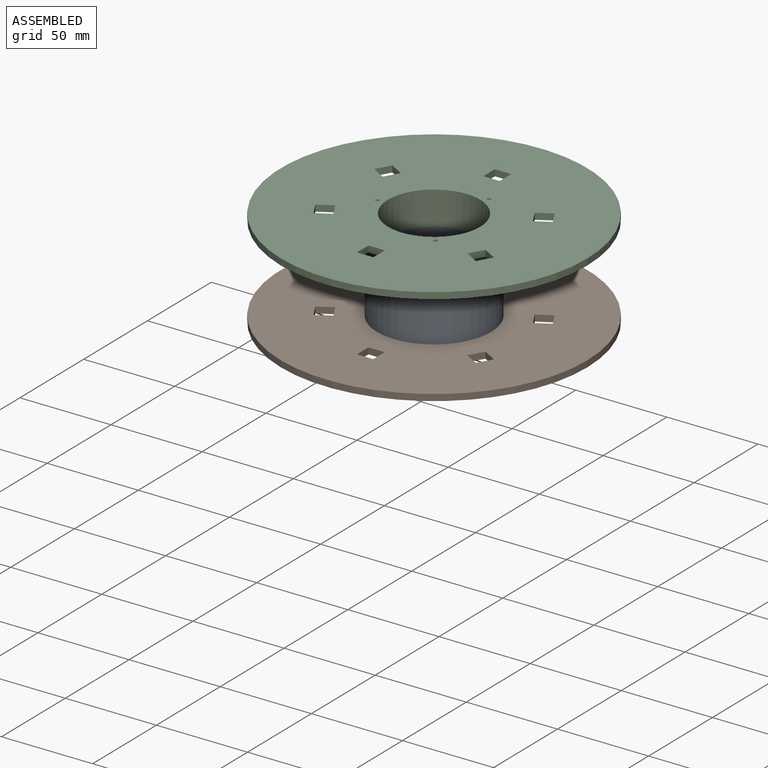
[diagram: assembled view]
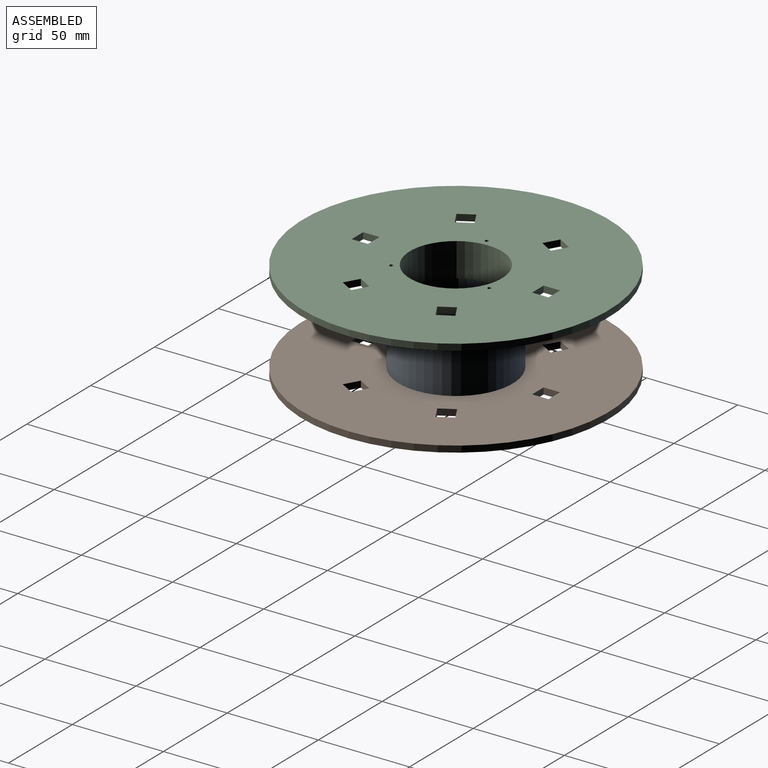
[diagram: assembled view, second angle]
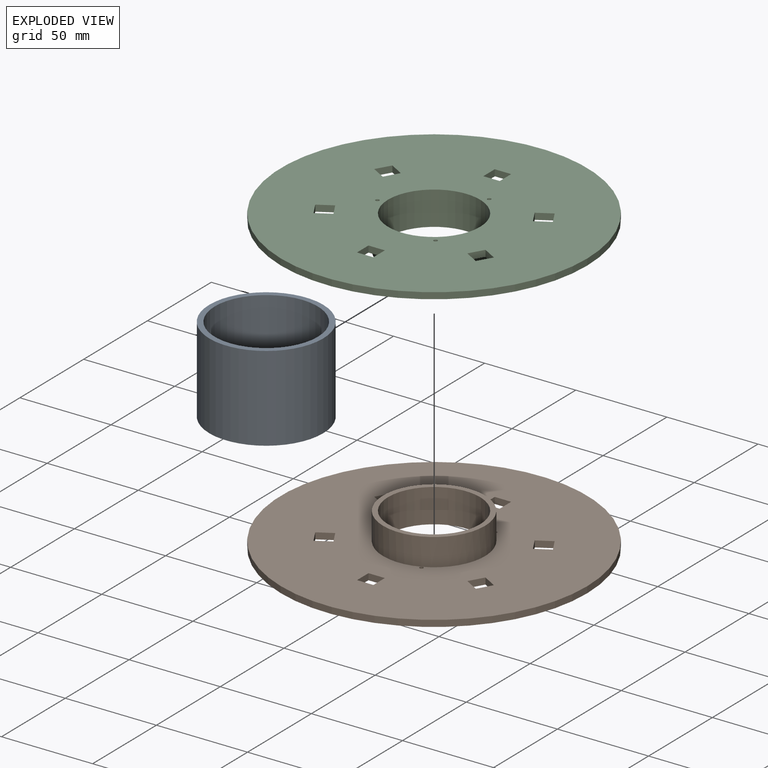
[diagram: exploded view]
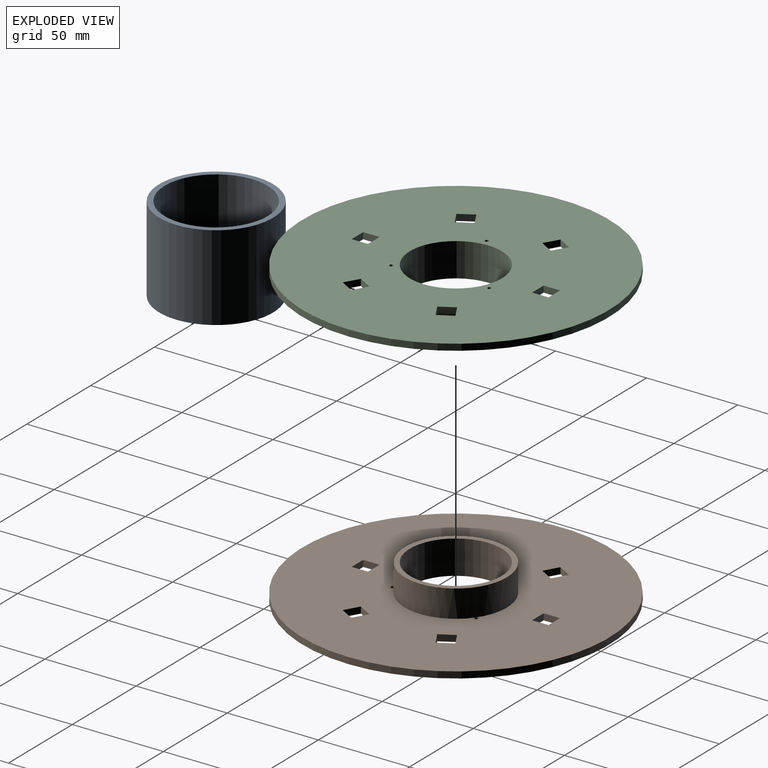
[diagram: exploded view, second angle]
ASSEMBLY  parts=3 mates=4
PART A: 4 faces, bbox 62.5x62.5x47 mm
  f0: cylinder r=28.25mm len=56.5mm, axis (0,0,-1), area 8342.5mm2, adj f2,f3
  f1: cylinder r=31.25mm len=62.5mm, axis (0,0,-1), area 9228.4mm2, adj f2,f3
  f2: plane 62.5x62.5mm, normal (0,0,1), area 560.8mm2, adj f0,f1
  f3: plane 62.5x62.5mm, normal (0,0,-1), area 560.8mm2, adj f0,f1
PART B: 33 faces, bbox 168x168x18.5 mm
  f0: plane 9x3.5mm, normal (0,1,0), area 31.5mm2, adj f1,f25,f26,f27
  f1: plane 9x3.5mm, normal (1,0,0), area 31.5mm2, adj f0,f2,f26,f27
  f2: plane 9x3.5mm, normal (0,-1,0), area 31.5mm2, adj f1,f25,f26,f27
  f3: plane 7.79x4.5mm, normal (0.5,0.87,0), area 31.5mm2, adj f4,f18,f26,f27
  f4: plane 7.79x4.5mm, normal (0.87,-0.5,0), area 31.5mm2, adj f3,f5,f26,f27
  f5: plane 7.79x4.5mm, normal (-0.5,-0.87,0), area 31.5mm2, adj f4,f18,f26,f27
  f6: plane 7.79x4.5mm, normal (-0.5,0.87,0), area 31.5mm2, adj f7,f19,f26,f27
  f7: plane 7.79x4.5mm, normal (0.87,0.5,0), area 31.5mm2, adj f6,f8,f26,f27
  f8: plane 7.79x4.5mm, normal (0.5,-0.87,0), area 31.5mm2, adj f7,f19,f26,f27
  f9: plane 9x3.5mm, normal (-1,0,0), area 31.5mm2, adj f10,f20,f26,f27
  f10: plane 9x3.5mm, normal (0,1,0), area 31.5mm2, adj f9,f11,f26,f27
  f11: plane 9x3.5mm, normal (1,0,0), area 31.5mm2, adj f10,f20,f26,f27
  f12: plane 7.79x4.5mm, normal (-0.5,-0.87,0), area 31.5mm2, adj f13,f21,f26,f27
  f13: plane 7.79x4.5mm, normal (-0.87,0.5,0), area 31.5mm2, adj f12,f14,f26,f27
  f14: plane 7.79x4.5mm, normal (0.5,0.87,0), area 31.5mm2, adj f13,f21,f26,f27
  f15: plane 7.79x4.5mm, normal (0.5,-0.87,0), area 31.5mm2, adj f16,f22,f26,f27
  f16: plane 7.79x4.5mm, normal (-0.87,-0.5,0), area 31.5mm2, adj f15,f17,f26,f27
  f17: plane 7.79x4.5mm, normal (-0.5,0.87,0), area 31.5mm2, adj f16,f22,f26,f27
  f18: plane 7.79x4.5mm, normal (-0.87,0.5,0), area 31.5mm2, adj f3,f5,f26,f27
  f19: plane 7.79x4.5mm, normal (-0.87,-0.5,0), area 31.5mm2, adj f6,f8,f26,f27
  f20: plane 9x3.5mm, normal (0,-1,0), area 31.5mm2, adj f9,f11,f26,f27
  f21: plane 7.79x4.5mm, normal (0.87,-0.5,0), area 31.5mm2, adj f12,f14,f26,f27
  f22: plane 7.79x4.5mm, normal (0.87,0.5,0), area 31.5mm2, adj f15,f17,f26,f27
  f23: cylinder r=84mm len=168mm, axis (0,0,-1), area 1847.3mm2, adj f26,f27
  f24: cylinder r=25.25mm len=50.5mm, axis (0,0,-1), area 2935mm2, adj f27,f29
  f25: plane 9x3.5mm, normal (-1,0,0), area 31.5mm2, adj f0,f2,f26,f27
  f26: plane 168x168mm, normal (0,0,1), area 19208.6mm2, adj f0,f1,f2,f3,f4,f5,f6,f7
  f27: plane 168x168mm, normal (0,0,-1), area 19668.7mm2, adj f0,f1,f2,f3,f4,f5,f6,f7
  f28: cylinder r=28mm len=56mm, axis (0,0,-1), area 2638.9mm2, adj f26,f29
  f29: plane 56x56mm, normal (0,0,1), area 460mm2, adj f24,f28
  f30: cylinder r=1mm len=3.5mm, axis (0,0,1), area 22mm2, adj f26,f27
  f31: cylinder r=1mm len=3.5mm, axis (0,0,1), area 22mm2, adj f26,f27
  f32: cylinder r=1mm len=3.5mm, axis (0,0,1), area 22mm2, adj f26,f27
PART C: same geometry as B
PLACE A rot(axis=(1,0,0),0deg) t=(198.66,19.49,458.73)mm
PLACE B t=(198.66,19.49,455.23)mm
PLACE C rot(axis=(-1,0,0),180deg) t=(198.66,19.49,509.23)mm
MATE cylindrical C.f23 <-> A.f0  axis (0,0,1) through (198.66,19.49,509.23)mm
MATE cylindrical B.f28 <-> A.f1  axis (0,0,1) through (198.66,19.49,473.73)mm
MATE planar C.f26 <-> A.f1  axis (0,0,-1) through (243.18,50.39,505.73)mm
MATE planar A.f1 <-> B.f26  axis (0,0,-1) through (198.66,19.49,458.73)mm
